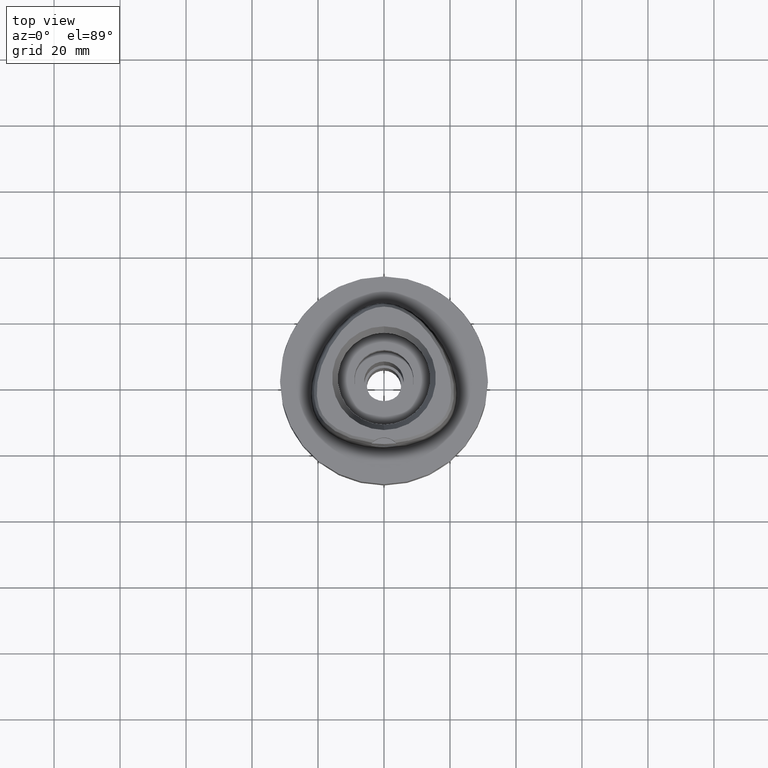
[diagram: clean part render]
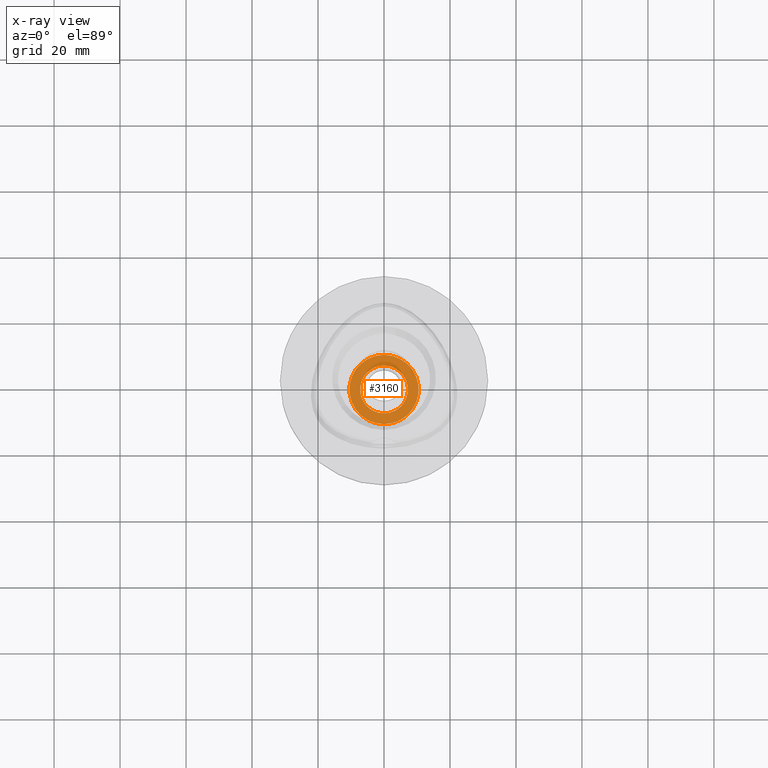
[diagram: x-ray — body ghosted, one internal face saturated and labeled with its STEP entity id]
A machine part, top view, then the same camera in x-ray: the body is ghosted and one INTERNAL B-rep face — a face not visible from any outside direction — is saturated and labeled: STEP entity #3160.
In plain terms, the highlighted planar face has unit normal (0, 0, -1).
Its self-contained STEP definition (entity closure, byte-faithful):
#59 = CARTESIAN_POINT ( 'NONE',  ( 0.0000000000000000000, 0.0000000000000000000, -8.200000000000001066 ) ) ;
#228 = FACE_OUTER_BOUND ( 'NONE', #2104, .T. ) ;
#494 = DIRECTION ( 'NONE',  ( 0.0000000000000000000, -1.000000000000000000, 0.0000000000000000000 ) ) ;
#695 = CARTESIAN_POINT ( 'NONE',  ( 0.0000000000000000000, 0.0000000000000000000, -8.200000000000001066 ) ) ;
#736 = VERTEX_POINT ( 'NONE', #1770 ) ;
#819 = ORIENTED_EDGE ( 'NONE', *, *, #4608, .F. ) ;
#884 = AXIS2_PLACEMENT_3D ( 'NONE', #695, #954, #3986 ) ;
#954 = DIRECTION ( 'NONE',  ( 0.0000000000000000000, 0.0000000000000000000, -1.000000000000000000 ) ) ;
#1097 = DIRECTION ( 'NONE',  ( 0.0000000000000000000, -1.000000000000000000, 0.0000000000000000000 ) ) ;
#1163 = CIRCLE ( 'NONE', #5026, 10.50000000000000000 ) ;
#1252 = CIRCLE ( 'NONE', #4386, 10.50000000000000000 ) ;
#1268 = DIRECTION ( 'NONE',  ( 0.0000000000000000000, 1.000000000000000000, 0.0000000000000000000 ) ) ;
#1555 = ORIENTED_EDGE ( 'NONE', *, *, #5344, .F. ) ;
#1697 = CARTESIAN_POINT ( 'NONE',  ( 0.0000000000000000000, -10.50000000000000000, -8.200000000000001066 ) ) ;
#1770 = CARTESIAN_POINT ( 'NONE',  ( 0.0000000000000000000, -7.250000000000000000, -8.200000000000001066 ) ) ;
#1955 = DIRECTION ( 'NONE',  ( 0.0000000000000000000, 1.000000000000000000, 0.0000000000000000000 ) ) ;
#2032 = VERTEX_POINT ( 'NONE', #1697 ) ;
#2104 = EDGE_LOOP ( 'NONE', ( #2243, #5402 ) ) ;
#2141 = EDGE_CURVE ( 'NONE', #3724, #2032, #1252, .T. ) ;
#2243 = ORIENTED_EDGE ( 'NONE', *, *, #2141, .F. ) ;
#2525 = CARTESIAN_POINT ( 'NONE',  ( 0.0000000000000000000, 0.0000000000000000000, -8.200000000000001066 ) ) ;
#2839 = FACE_BOUND ( 'NONE', #2905, .T. ) ;
#2905 = EDGE_LOOP ( 'NONE', ( #819, #1555 ) ) ;
#3025 = CIRCLE ( 'NONE', #4650, 7.250000000000000000 ) ;
#3160 = ADVANCED_FACE ( 'NONE', ( #228, #2839 ), #3673, .F. ) ;
#3240 = DIRECTION ( 'NONE',  ( 0.0000000000000000000, 0.0000000000000000000, 1.000000000000000000 ) ) ;
#3305 = CARTESIAN_POINT ( 'NONE',  ( 0.0000000000000000000, 7.250000000000000000, -8.200000000000001066 ) ) ;
#3385 = CIRCLE ( 'NONE', #4899, 7.250000000000000000 ) ;
#3404 = CARTESIAN_POINT ( 'NONE',  ( 0.0000000000000000000, 0.0000000000000000000, -8.200000000000001066 ) ) ;
#3481 = CARTESIAN_POINT ( 'NONE',  ( 0.0000000000000000000, 0.0000000000000000000, -8.200000000000001066 ) ) ;
#3673 = PLANE ( 'NONE',  #884 ) ;
#3724 = VERTEX_POINT ( 'NONE', #5456 ) ;
#3780 = EDGE_CURVE ( 'NONE', #2032, #3724, #1163, .T. ) ;
#3871 = DIRECTION ( 'NONE',  ( 0.0000000000000000000, 0.0000000000000000000, -1.000000000000000000 ) ) ;
#3986 = DIRECTION ( 'NONE',  ( 0.0000000000000000000, -1.000000000000000000, 0.0000000000000000000 ) ) ;
#4236 = DIRECTION ( 'NONE',  ( 0.0000000000000000000, 0.0000000000000000000, 1.000000000000000000 ) ) ;
#4354 = DIRECTION ( 'NONE',  ( 0.0000000000000000000, 0.0000000000000000000, -1.000000000000000000 ) ) ;
#4386 = AXIS2_PLACEMENT_3D ( 'NONE', #3404, #3871, #1268 ) ;
#4608 = EDGE_CURVE ( 'NONE', #5084, #736, #3025, .T. ) ;
#4650 = AXIS2_PLACEMENT_3D ( 'NONE', #2525, #4236, #1955 ) ;
#4899 = AXIS2_PLACEMENT_3D ( 'NONE', #59, #3240, #1097 ) ;
#5026 = AXIS2_PLACEMENT_3D ( 'NONE', #3481, #4354, #494 ) ;
#5084 = VERTEX_POINT ( 'NONE', #3305 ) ;
#5344 = EDGE_CURVE ( 'NONE', #736, #5084, #3385, .T. ) ;
#5402 = ORIENTED_EDGE ( 'NONE', *, *, #3780, .F. ) ;
#5456 = CARTESIAN_POINT ( 'NONE',  ( 0.0000000000000000000, 10.50000000000000000, -8.200000000000001066 ) ) ;